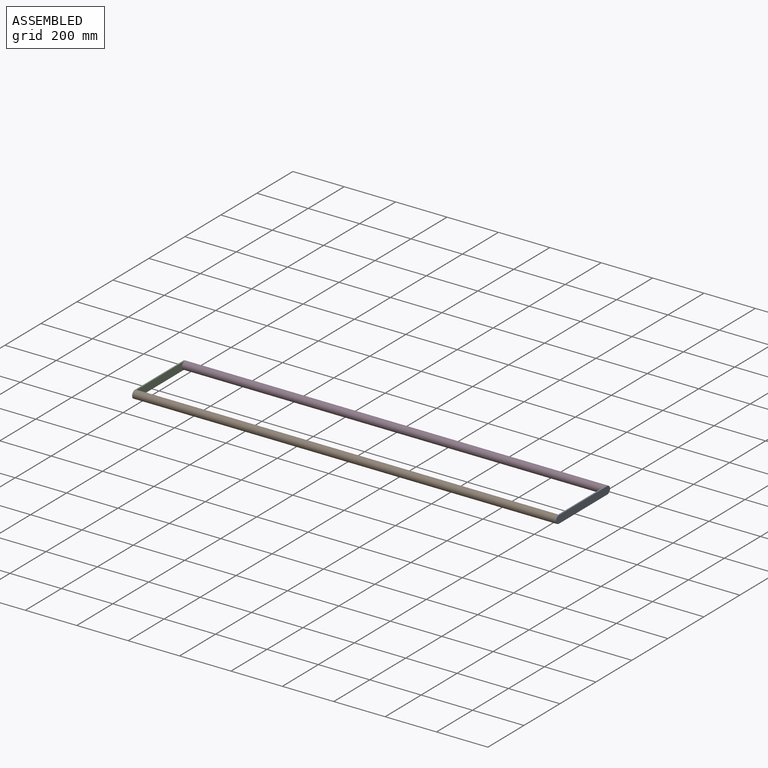
[diagram: assembled view]
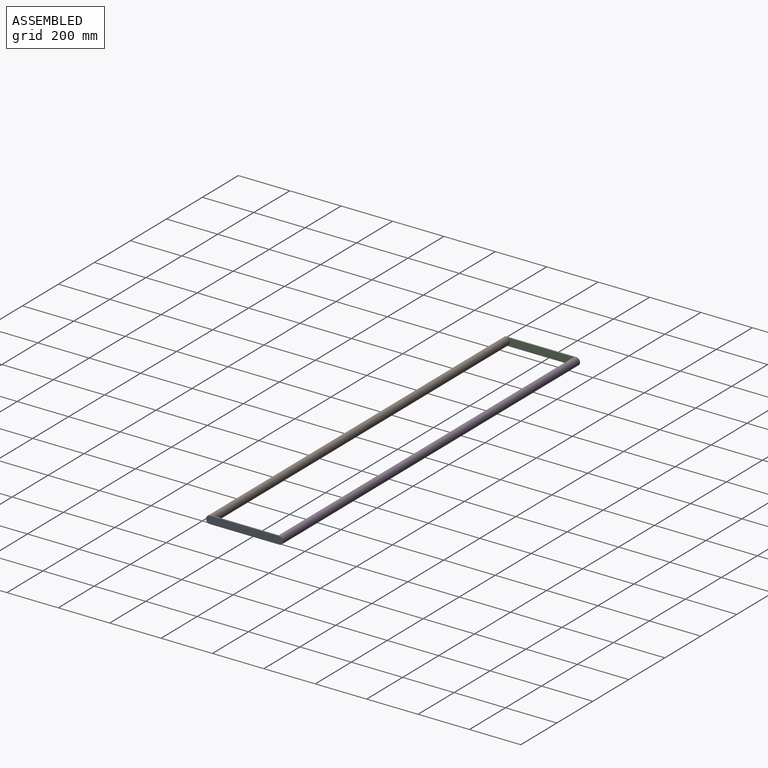
[diagram: assembled view, second angle]
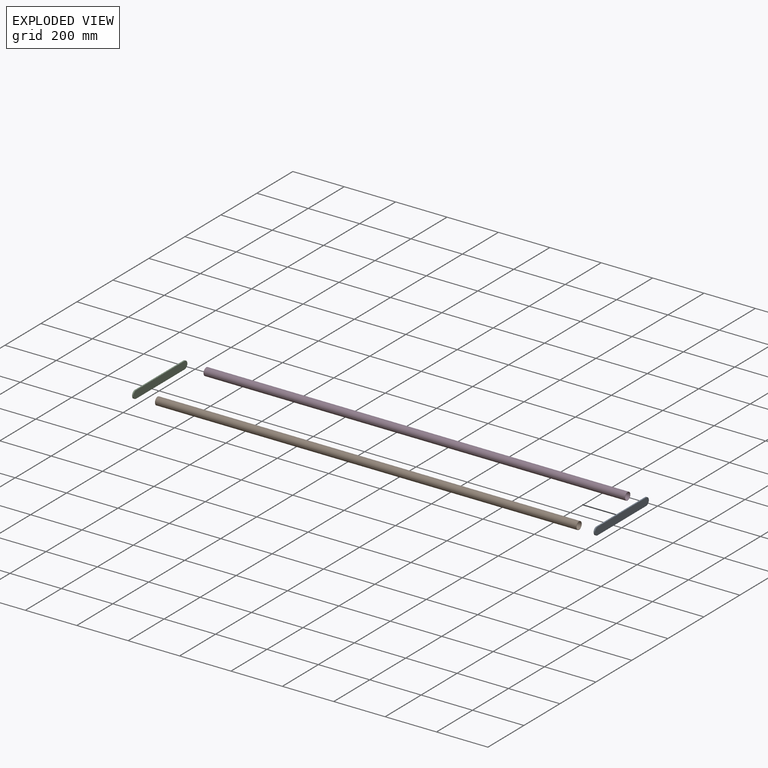
[diagram: exploded view]
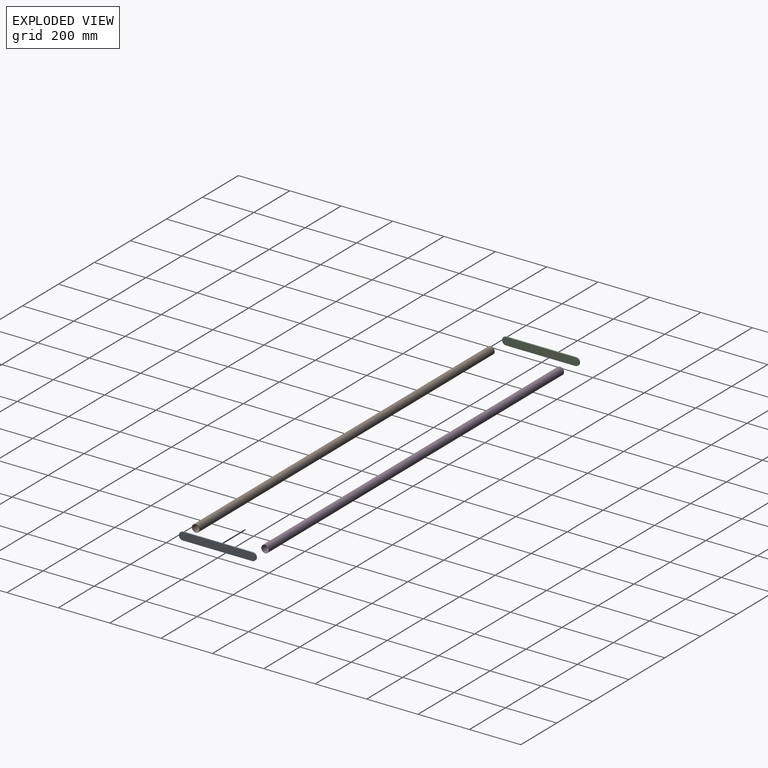
[diagram: exploded view, second angle]
ASSEMBLY  parts=4 mates=6
PART A: 6 faces, bbox 5x300x30 mm
  f0: plane 270x5mm, normal (0,0,1), area 1350mm2, adj f1,f3,f4,f5
  f1: cylinder r=15mm len=30mm, axis (-1,0,0), area 235.6mm2, adj f0,f2,f4,f5
  f2: plane 270x5mm, normal (0,0,-1), area 1350mm2, adj f1,f3,f4,f5
  f3: cylinder r=15mm len=30mm, axis (-1,0,0), area 235.6mm2, adj f0,f2,f4,f5
  f4: plane 300x30mm, normal (1,0,0), area 8806.9mm2, adj f0,f1,f2,f3
  f5: plane 300x30mm, normal (-1,0,0), area 8806.9mm2, adj f0,f1,f2,f3
PART B: 4 faces, bbox 1640x30x30 mm
  f0: cylinder r=14mm len=1640mm, axis (-1,0,0), area 144261.9mm2, adj f2,f3
  f1: cylinder r=15mm len=1640mm, axis (-1,0,0), area 154566.4mm2, adj f2,f3
  f2: plane 30x30mm, normal (1,0,0), area 91.1mm2, adj f0,f1
  f3: plane 30x30mm, normal (-1,0,0), area 91.1mm2, adj f0,f1
PART C: same geometry as A
PART D: same geometry as B
PLACE A t=(1645,0,0)mm
PLACE B t=(5,-135,0)mm
PLACE C at identity fixed
PLACE D t=(5,135,0)mm
MATE planar D.f1 <-> A.f5  axis (1,0,0) through (1645,135,0)mm
MATE planar D.f1 <-> C.f4  axis (-1,0,0) through (5,135,0)mm
MATE cylindrical B.f1 <-> C.f1  axis (-1,0,0) through (5,-135,0)mm
MATE planar B.f1 <-> C.f4  axis (-1,0,0) through (5,-135,0)mm
MATE cylindrical D.f1 <-> C.f3  axis (-1,0,0) through (825,135,0)mm
MATE cylindrical A.f3 <-> D.f1  axis (-1,0,0) through (1647.5,135,0)mm
